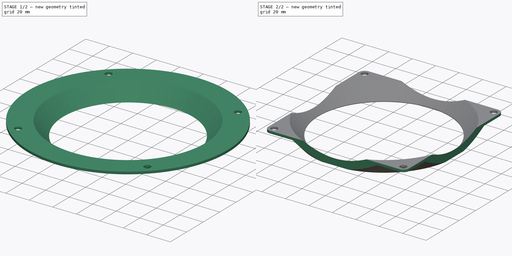
[diagram: build sequence overview — one tinted view per stage of 2, left to right]
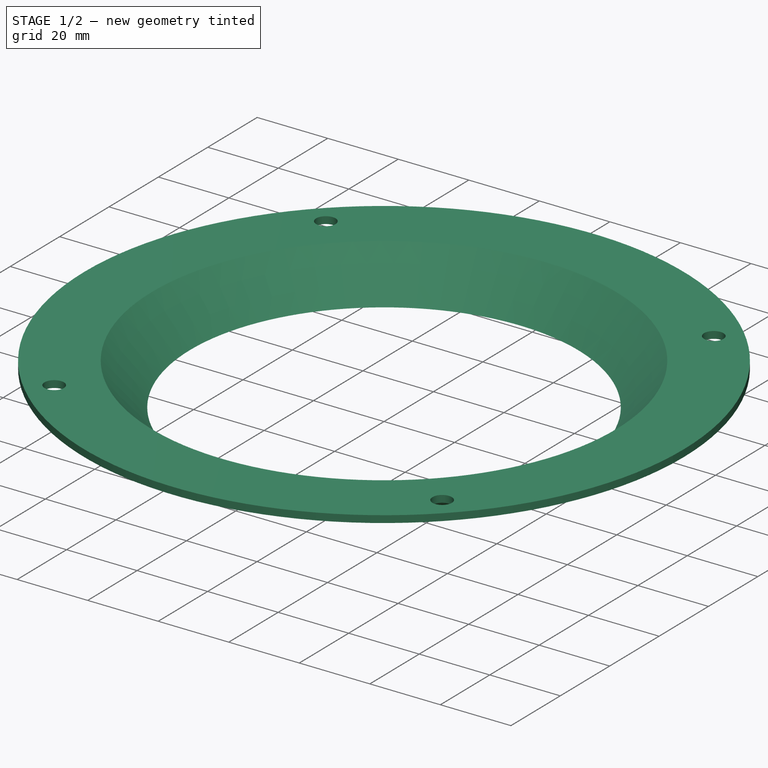
[diagram: stage 1 of 2 — iso view after this stage's code; geometry added in this stage tinted green]
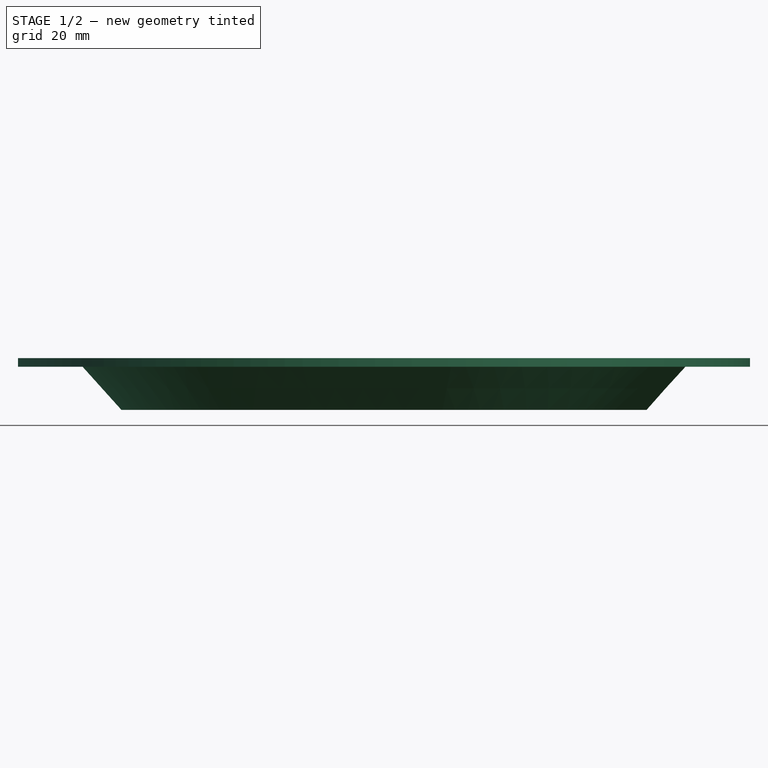
[diagram: stage 1 of 2 — front view after this stage's code; geometry added in this stage tinted green]
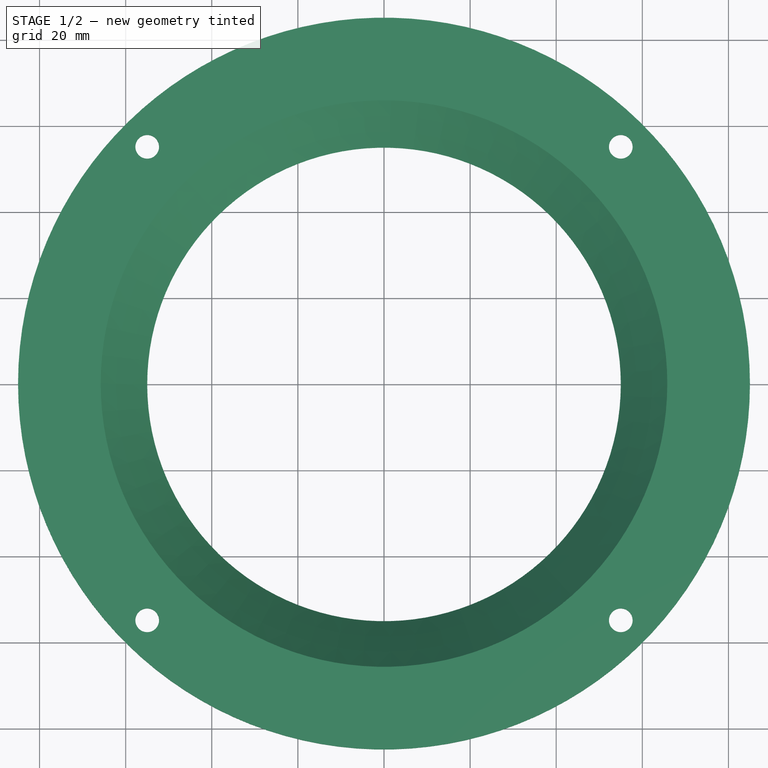
[diagram: stage 1 of 2 — top view after this stage's code; geometry added in this stage tinted green]
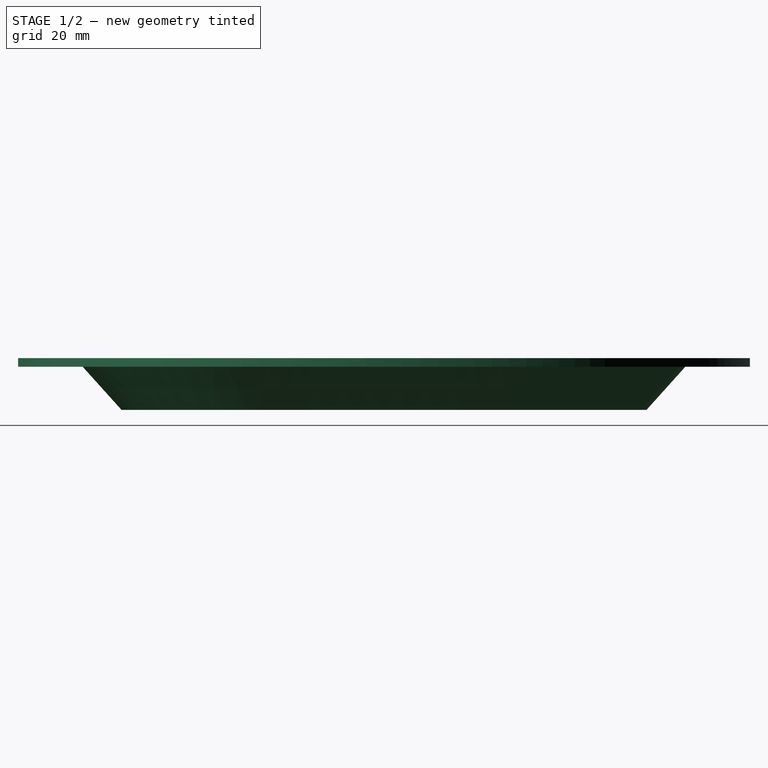
[diagram: stage 1 of 2 — right view after this stage's code; geometry added in this stage tinted green]
FCSTD DOCUMENT  (FreeCAD 2023.521R14555 (Git shallow))
Label: Lens_clamp
License: All rights reserved
objects: Sketcher::SketchObject×3, PartDesign::Pad×1, PartDesign::Groove×1, PartDesign::CoordinateSystem×1, PartDesign::Pocket×1, PartDesign::Fillet×1, PartDesign::Body×1, App::Part×1
note: 20 computed .brp shape members not serialized (recipe doc carries the construction recipe); baked Part::Feature solids carry a one-line shape summary decoded from their .brp

FEATURE [Sketcher::SketchObject] Sketch
  ArcFitTolerance = 1e-06
  AttachmentSupport = -> [XY_Plane]
  ExternalBSplineMaxDegree = 5
  ExternalBSplineTolerance = 0.0001
  FullyConstrained = true
  InternalTolerance = 1e-06
  InvalidShape = false
  MakeInternals = false
  MapMode = 5
  Support = -> [XY_Plane]
  TreeRank = 12
  ValidateShape = false
  sketch-geometry (7):
    g0: Circle CenterX=-55 CenterY=55 CenterZ=0 NormalX=0 NormalY=0 NormalZ=1 AngleXU=0 Radius=2.75
    g1: Circle CenterX=55 CenterY=55 CenterZ=0 NormalX=0 NormalY=0 NormalZ=1 AngleXU=0 Radius=2.75
    g2: Circle CenterX=55 CenterY=-55 CenterZ=0 NormalX=0 NormalY=0 NormalZ=1 AngleXU=0 Radius=2.75
    g3: Circle CenterX=-55 CenterY=-55 CenterZ=0 NormalX=0 NormalY=0 NormalZ=1 AngleXU=0 Radius=2.75
    g4: Circle CenterX=0 CenterY=0 CenterZ=0 NormalX=0 NormalY=0 NormalZ=1 AngleXU=0 Radius=85
    g5: LineSegment [constr] StartX=0 StartY=0 StartZ=0 EndX=55 EndY=55 EndZ=0
    g6: LineSegment [constr] StartX=0 StartY=0 StartZ=0 EndX=55 EndY=-55 EndZ=0
  constraints (16):
    c: Equal(g2,g1)
    c: Equal(g1,g0)
    c: Equal(g0,g3)
    c: Diameter(g3) = 5.5
    c: Coincident(g4,g-1)
    c: Diameter(g4) = 170
    c: Coincident(g5,g4)
    c: Coincident(g5,g1)
    c: Coincident(g6,g4)
    c: Coincident(g6,g2)
    c: Equal(g6,g5)
    c: DistanceX(g6,g6) = 55
    c: Symmetric(g2,g0,g4)
    c: Symmetric(g3,g1,g4)
    c: Perpendicular(g5,g6)
    c: Vertical(g2,g1)
FEATURE [PartDesign::Pad] Pad
  AddSubType = 0
  AlongSketchNormal = false
  AutoTaperInnerAngle = true
  CheckUpToFaceLimits = true
  ClaimChildren = false
  Direction = (0,0,1)
  Fit = 0
  FitJoin = 0
  InnerFit = 0
  InnerFitJoin = 0
  InvalidShape = false
  Length = 20
  Length2 = 10
  Linearize = true
  NewSolid = false
  Profile = -> Sketch
  ReferenceAxis = -> Sketch [N_Axis]
  Reversed = true
  Suppress = false
  TaperInnerAngle = 0
  TaperInnerAngleRev = 0
  TreeRank = 13
  Type = 0
  ValidateShape = true
  _ProfileBasedVersion = 1
FEATURE [Sketcher::SketchObject] Sketch001
  ArcFitTolerance = 1e-06
  AttachmentSupport = -> [XZ_Plane]
  ExternalBSplineMaxDegree = 5
  ExternalBSplineTolerance = 0.0001
  ExternalGeometry = -> [Pad]
  FullyConstrained = true
  InternalTolerance = 1e-06
  InvalidShape = false
  MakeInternals = false
  MapMode = 5
  Placement = pos=(0,0,0) rot=(1,0,0;1.5708rad)
  Support = -> [XZ_Plane]
  TreeRank = 14
  ValidateShape = false
  sketch-geometry (8):
    g0: LineSegment StartX=-70 StartY=-2 StartZ=0 EndX=-85 EndY=-2 EndZ=0
    g1: LineSegment StartX=-85 StartY=-2 StartZ=0 EndX=-85 EndY=-20 EndZ=0
    g2: LineSegment StartX=-85 StartY=-20 StartZ=0 EndX=0 EndY=-20 EndZ=0
    g3: LineSegment StartX=0 StartY=-20 StartZ=0 EndX=0 EndY=0 EndZ=0
    g4: LineSegment StartX=0 StartY=0 StartZ=0 EndX=-65.8 EndY=0 EndZ=0
    g5: LineSegment StartX=-61 StartY=-12 StartZ=0 EndX=-55 EndY=-12 EndZ=0
    g6: LineSegment StartX=-70 StartY=-2 StartZ=0 EndX=-61 EndY=-12 EndZ=0
    g7: LineSegment StartX=-55 StartY=-12 StartZ=0 EndX=-65.8 EndY=0 EndZ=0
  constraints (22):
    c: Horizontal(g0)
    c: Coincident(g1,g0)
    c: Vertical(g1)
    c: Coincident(g2,g1)
    c: Coincident(g1,g-4)
    c: DistanceY(g0,g-3) = 2
    c: Horizontal(g4)
    c: Vertical(g3)
    c: Coincident(g3,g-1)
    c: Coincident(g3,g4)
    c: DistanceX(g5,g3) = 55
    c: Coincident(g2,g3)
    c: Horizontal(g2)
    c: Horizontal(g5)
    c: DistanceX(g5,g5) = 6
    c: Coincident(g6,g0)
    c: Coincident(g6,g5)
    c: Coincident(g7,g5)
    c: Coincident(g7,g4)
    c: DistanceY(g5,g0) = 10
    c: DistanceX(g0,g2) = 70
    c: Parallel(g6,g7)
FEATURE [PartDesign::Groove] Groove
  AddSubType = 1
  Angle = 360
  Axis = (0,-2e-16,1)
  Base = (0,0,0)
  BaseFeature = -> Pad
  ClaimChildren = false
  Fit = 0
  FitJoin = 0
  InnerFit = 0
  InnerFitJoin = 0
  InvalidShape = false
  Linearize = true
  NewSolid = false
  Profile = -> Sketch001
  ReferenceAxis = -> Sketch001 [V_Axis]
  Reversed = true
  Suppress = false
  TreeRank = 15
  ValidateShape = true
  _ProfileBasedVersion = 1
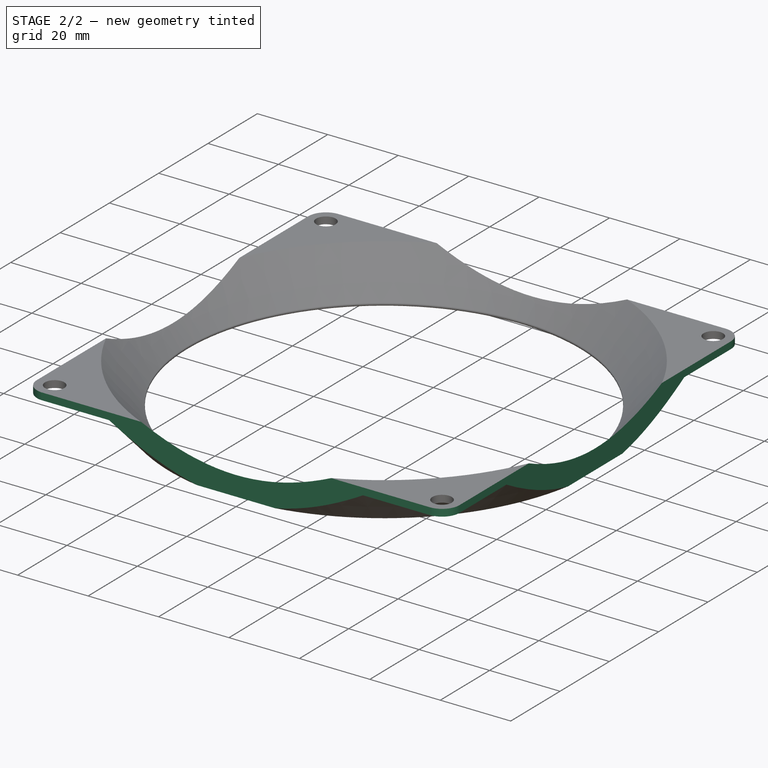
[diagram: stage 2 of 2 — iso view after this stage's code; geometry added in this stage tinted green]
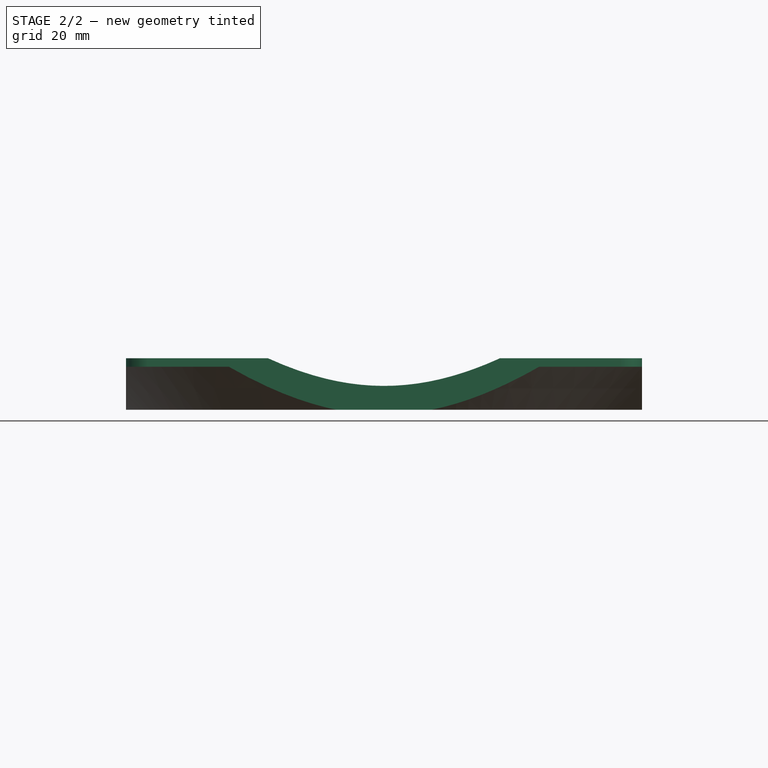
[diagram: stage 2 of 2 — front view after this stage's code; geometry added in this stage tinted green]
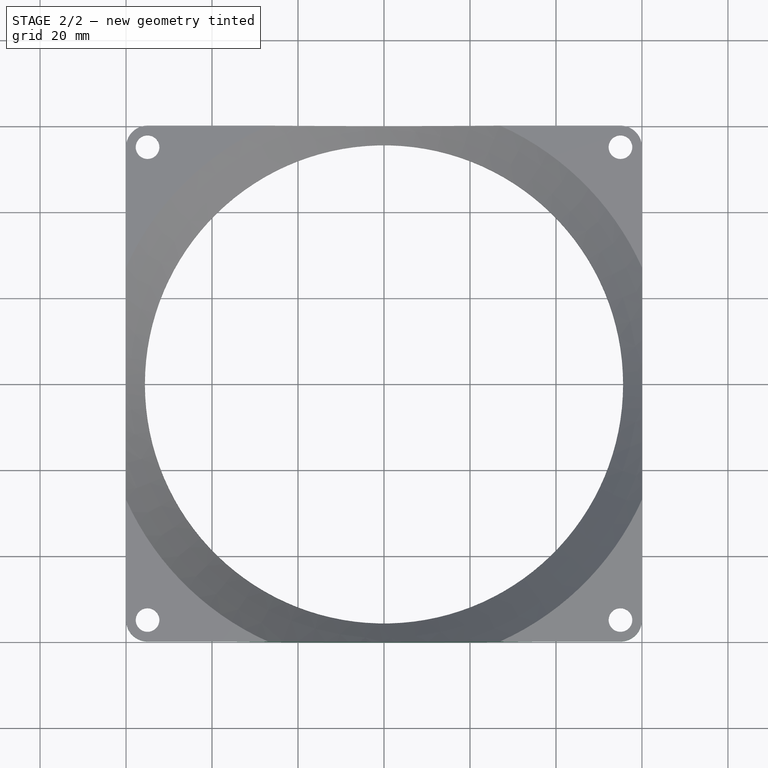
[diagram: stage 2 of 2 — top view after this stage's code; geometry added in this stage tinted green]
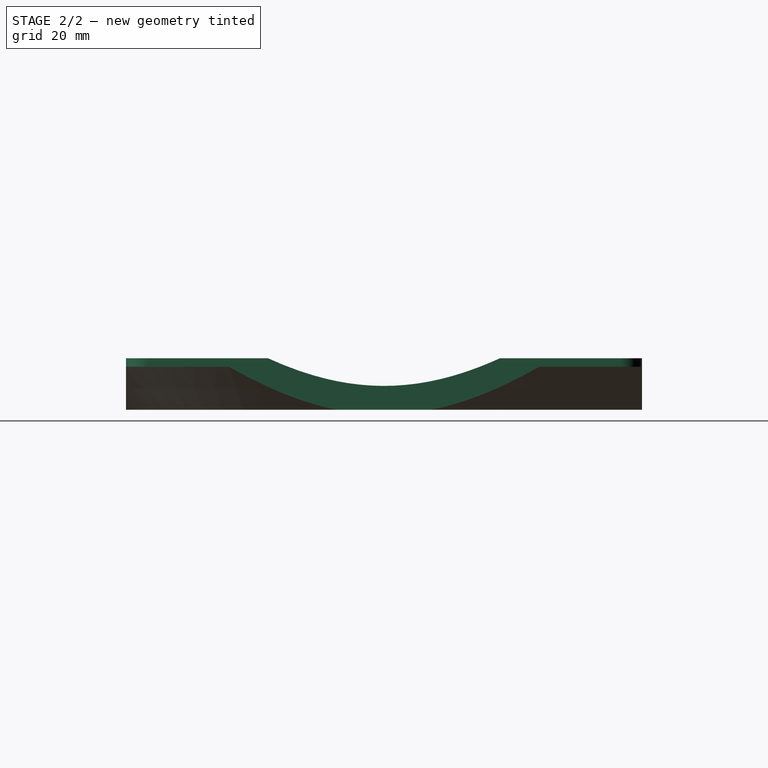
[diagram: stage 2 of 2 — right view after this stage's code; geometry added in this stage tinted green]
FEATURE [PartDesign::CoordinateSystem] Local_CS  label="Center"
  AttacherType = Attacher::AttachEngine3D
  AttachmentSupport = -> [Groove]
  InvalidShape = false
  MapMode = 11
  Placement = pos=(0,4e-16,-2) rot=(0,0,-1;1.5708rad)
  Support = -> [Groove]
  TreeRank = 19
  ValidateShape = false
FEATURE [Sketcher::SketchObject] Sketch002
  ArcFitTolerance = 1e-06
  AttachmentSupport = -> [Groove]
  ExternalBSplineMaxDegree = 5
  ExternalBSplineTolerance = 0.0001
  ExternalGeometry = -> [Groove]
  FullyConstrained = true
  InternalTolerance = 1e-06
  InvalidShape = false
  MakeInternals = false
  MapMode = 5
  Support = -> [Groove]
  TreeRank = 20
  ValidateShape = false
  sketch-geometry (13):
    g0: LineSegment StartX=-60 StartY=-55 StartZ=0 EndX=-60 EndY=55 EndZ=0
    g1: LineSegment StartX=-55 StartY=60 StartZ=0 EndX=55 EndY=60 EndZ=0
    g2: LineSegment StartX=60 StartY=55 StartZ=0 EndX=60 EndY=-55 EndZ=0
    g3: LineSegment StartX=55 StartY=-60 StartZ=0 EndX=-55 EndY=-60 EndZ=0
    g4: GeomPoint [constr] X=0 Y=0 Z=0
    g5: ArcOfCircle CenterX=55 CenterY=55 CenterZ=0 NormalX=0 NormalY=0 NormalZ=1 AngleXU=0 Radius=5 StartAngle=-9e-16 EndAngle=1.5708
    g6: GeomPoint [constr] X=60 Y=60 Z=0
    g7: ArcOfCircle CenterX=-55 CenterY=55 CenterZ=0 NormalX=0 NormalY=0 NormalZ=1 AngleXU=0 Radius=5 StartAngle=1.5708 EndAngle=3.14159
    g8: GeomPoint [constr] X=-60 Y=60 Z=0
    g9: ArcOfCircle CenterX=-55 CenterY=-55 CenterZ=0 NormalX=0 NormalY=0 NormalZ=1 AngleXU=0 Radius=5 StartAngle=3.14159 EndAngle=4.71239
    g10: GeomPoint [constr] X=-60 Y=-60 Z=0
    g11: ArcOfCircle CenterX=55 CenterY=-55 CenterZ=0 NormalX=0 NormalY=0 NormalZ=1 AngleXU=0 Radius=5 StartAngle=4.71239 EndAngle=6.28319
    g12: GeomPoint [constr] X=60 Y=-60 Z=0
  constraints (26):
    c: Horizontal(g1)
    c: Horizontal(g3)
    c: Vertical(g0)
    c: Vertical(g2)
    c: Symmetric(g6,g10,g4)
    c: Coincident(g4,g-1)
    c: DistanceX(g8,g6) = 120
    c: PointOnObject(g6,g1)
    c: PointOnObject(g6,g2)
    c: Tangent(g1,g5) = 1.5708
    c: Tangent(g2,g5) = 1.5708
    c: PointOnObject(g8,g1)
    c: PointOnObject(g8,g0)
    c: Tangent(g1,g7) = 1.5708
    c: Tangent(g0,g7) = 1.5708
    c: PointOnObject(g10,g3)
    c: Tangent(g0,g9) = 1.5708
    c: Tangent(g3,g9) = 1.5708
    c: PointOnObject(g12,g3)
    c: PointOnObject(g12,g2)
    c: Tangent(g3,g11) = 1.5708
    c: Tangent(g2,g11) = 1.5708
    c: Equal(g3,g2)
    c: Equal(g2,g0)
    c: Coincident(g9,g-5)
    c: Coincident(g11,g-4)
FEATURE [PartDesign::Pocket] Pocket
  AddSubType = 2
  AlongSketchNormal = false
  AutoTaperInnerAngle = true
  BaseFeature = -> Groove
  CheckUpToFaceLimits = true
  ClaimChildren = false
  Direction = (0,0,-1)
  Fit = 0
  FitJoin = 0
  InnerFit = 0
  InnerFitJoin = 0
  InvalidShape = false
  Length = 5
  Length2 = 10
  Linearize = true
  NewSolid = false
  Profile = -> Sketch002
  ReferenceAxis = -> Sketch002 [N_Axis]
  Suppress = false
  TaperInnerAngle = 0
  TaperInnerAngleRev = 0
  TreeRank = 21
  Type = 1
  ValidateShape = true
  _ProfileBasedVersion = 1
  _Version = 1
FEATURE [PartDesign::Fillet] Fillet
  AddSubType = 0
  Base = -> Pocket [Edge15]
  BaseFeature = -> Pocket
  InvalidShape = false
  NewSolid = false
  Radius = 0.5
  SupportTransform = false
  Suppress = false
  TreeRank = 22
  UseAllEdges = false
  ValidateShape = true
FEATURE [PartDesign::Body] Body
  AutoGroupSolids = false
  ClaimAllChildren = false
  ExportMode = 0
  Group = -> [Sketch,Pad,Sketch001,Groove,Sketch002,Pocket,Fillet]
  InvalidShape = false
  Origin = -> Origin
  Tip = -> Fillet
  TreeRank = 10
  ValidateShape = false
  _ExportChildren = -> [Pad,Groove,Pocket,Fillet]
  _GroupVersion = 1
FEATURE [App::Part] Part  label="Clamp"
  ClaimAllChildren = false
  ExportMode = 1
  Group = -> [Body,Local_CS]
  Origin = -> Origin001
  TreeRank = 18
  _ExportChildren = -> [Body,Local_CS]
  _GroupVersion = 1
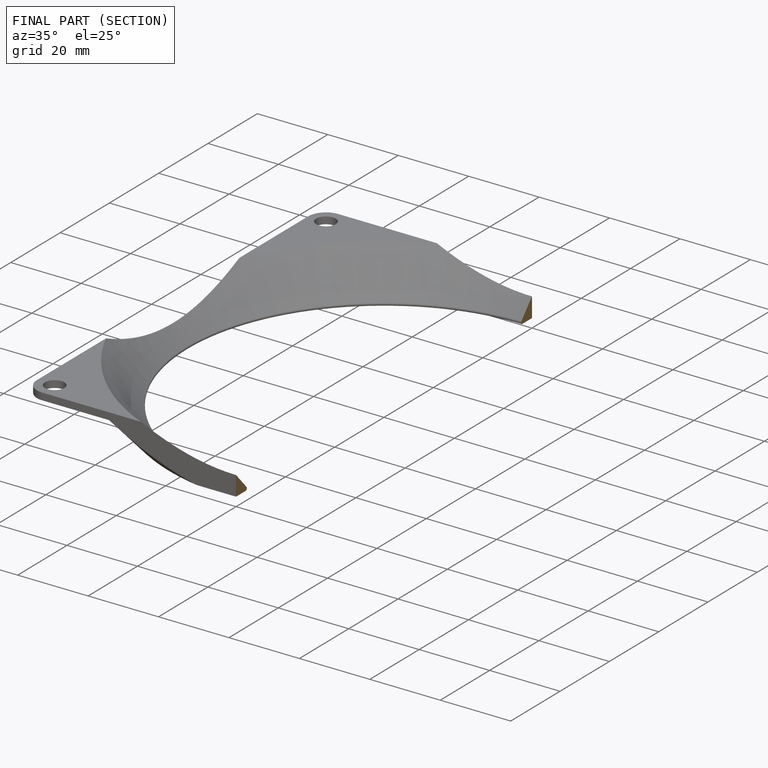
[diagram: finished part — half-section view (interior)]
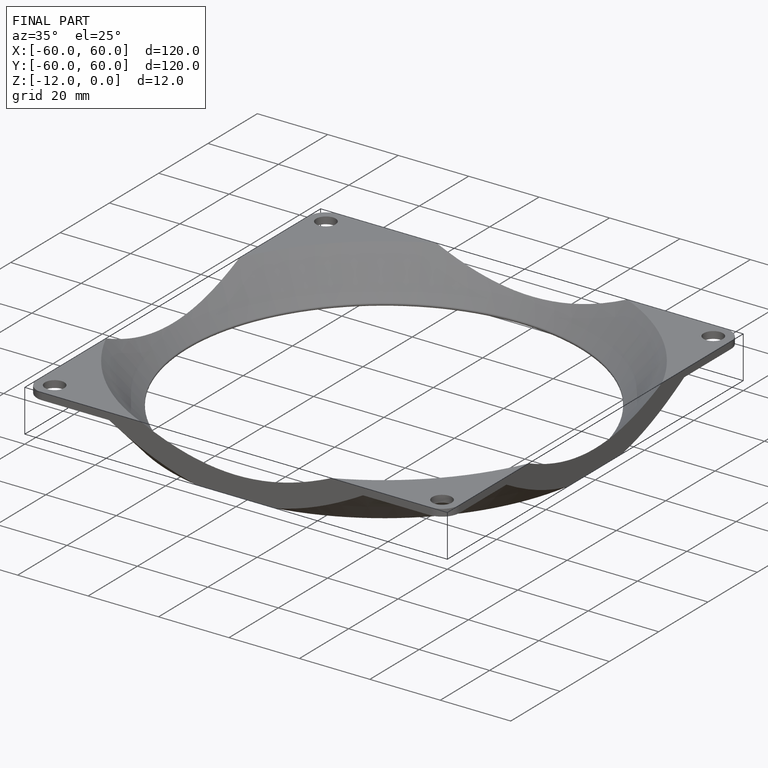
[diagram: finished part — iso view with bounding-box wireframe]
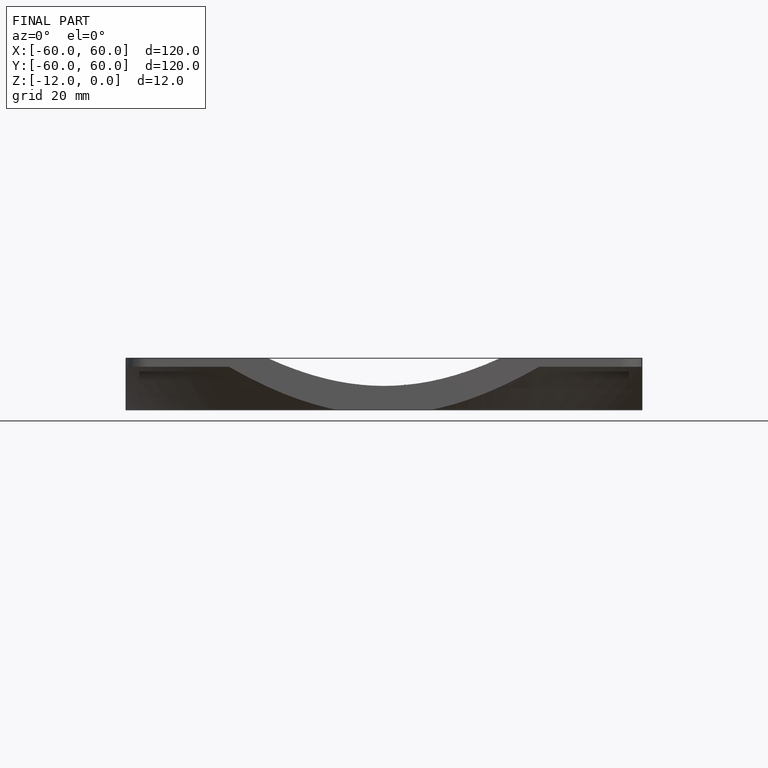
[diagram: finished part — front view with bounding-box wireframe]
